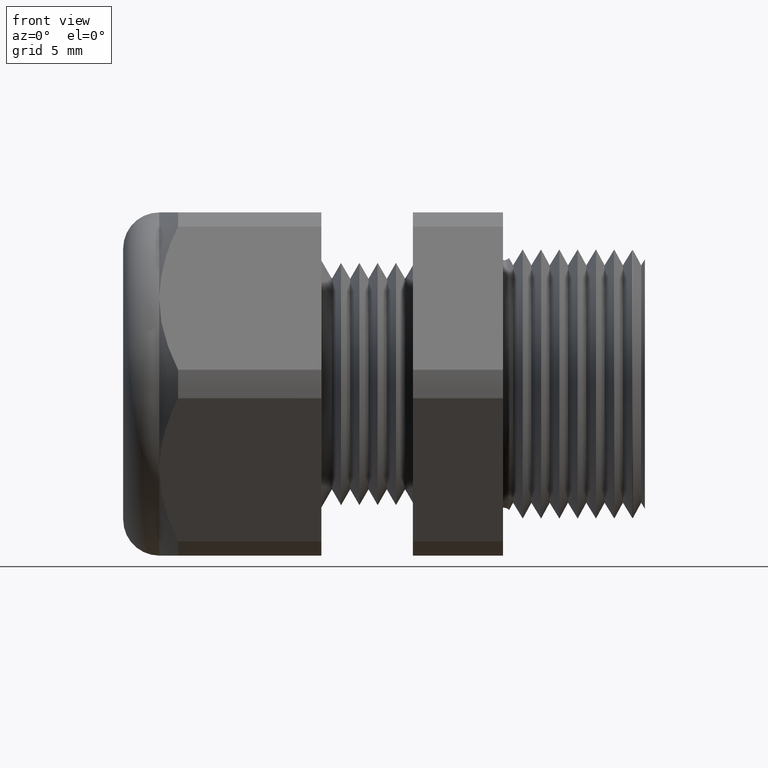
[diagram: clean part render]
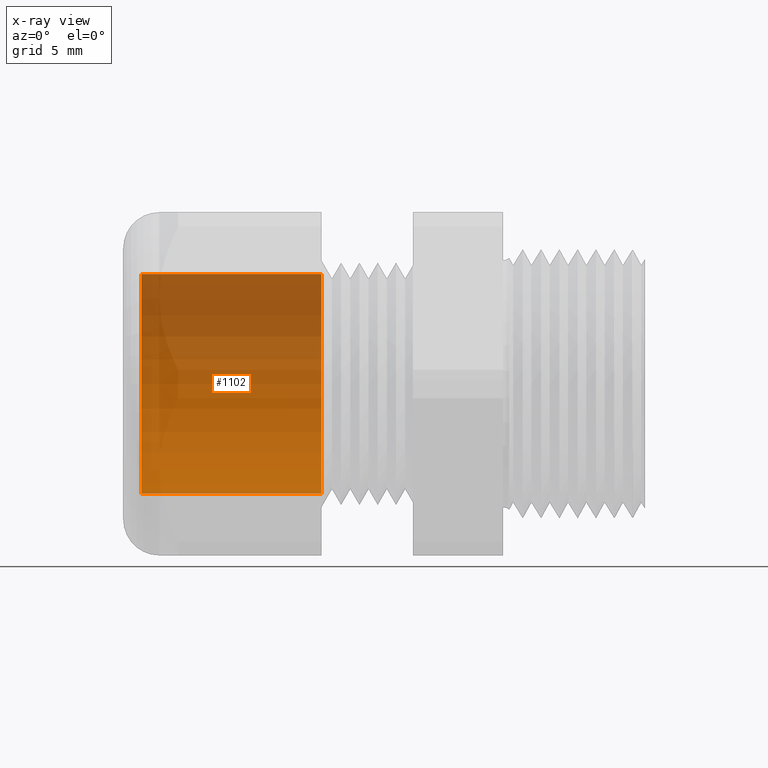
[diagram: x-ray — body ghosted, one internal face saturated and labeled with its STEP entity id]
A machine part, front view, then the same camera in x-ray: the body is ghosted and one INTERNAL B-rep face — a face not visible from any outside direction — is saturated and labeled: STEP entity #1102.
In plain terms, the highlighted cylindrical surface (partial cylindrical patch) has radius 6.096 mm, axis along (1, 0, 0).
Its self-contained STEP definition (entity closure, byte-faithful):
#1013 = VERTEX_POINT ( 'NONE', #2940 ) ;
#1089 = EDGE_CURVE ( 'NONE', #1096, #1106, #3068, .T. ) ;
#1090 = ORIENTED_EDGE ( 'NONE', *, *, #1091, .F. ) ;
#1091 = EDGE_CURVE ( 'NONE', #1013, #1106, #3064, .T. ) ;
#1096 = VERTEX_POINT ( 'NONE', #3048 ) ;
#1098 = EDGE_CURVE ( 'NONE', #1099, #1096, #3047, .T. ) ;
#1099 = VERTEX_POINT ( 'NONE', #3104 ) ;
#1102 = ADVANCED_FACE ( 'NONE', ( #3103 ), #3096, .T. ) ;
#1103 = EDGE_LOOP ( 'NONE', ( #1104, #1105, #1090, #1107 ) ) ;
#1104 = ORIENTED_EDGE ( 'NONE', *, *, #1098, .T. ) ;
#1105 = ORIENTED_EDGE ( 'NONE', *, *, #1089, .T. ) ;
#1106 = VERTEX_POINT ( 'NONE', #3092 ) ;
#1107 = ORIENTED_EDGE ( 'NONE', *, *, #1108, .F. ) ;
#1108 = EDGE_CURVE ( 'NONE', #1099, #1013, #3091, .T. ) ;
#2940 = CARTESIAN_POINT ( 'NONE',  ( -0.7069291338582671700, 0.0000000000000000000, -0.2399999999999999600 ) ) ;
#3044 = DIRECTION ( 'NONE',  ( 1.000000000000000000, 0.0000000000000000000, 0.0000000000000000000 ) ) ;
#3045 = CARTESIAN_POINT ( 'NONE',  ( -1.099999999999999900, 0.0000000000000000000, 0.0000000000000000000 ) ) ;
#3046 = AXIS2_PLACEMENT_3D ( 'NONE', #3045, #3044, #3105 ) ;
#3047 = CIRCLE ( 'NONE', #3046, 0.2399999999999999600 ) ;
#3048 = CARTESIAN_POINT ( 'NONE',  ( -1.099999999999999900, 2.939152317953647400E-017, 0.2399999999999999600 ) ) ;
#3060 = DIRECTION ( 'NONE',  ( 0.0000000000000000000, 0.0000000000000000000, -1.000000000000000000 ) ) ;
#3061 = DIRECTION ( 'NONE',  ( 1.000000000000000000, 0.0000000000000000000, 0.0000000000000000000 ) ) ;
#3062 = CARTESIAN_POINT ( 'NONE',  ( -0.7069291338582671700, 0.0000000000000000000, 0.0000000000000000000 ) ) ;
#3063 = AXIS2_PLACEMENT_3D ( 'NONE', #3062, #3061, #3060 ) ;
#3064 = CIRCLE ( 'NONE', #3063, 0.2399999999999999600 ) ;
#3065 = DIRECTION ( 'NONE',  ( 1.000000000000000000, 0.0000000000000000000, 0.0000000000000000000 ) ) ;
#3066 = VECTOR ( 'NONE', #3065, 39.37007874015748100 ) ;
#3067 = CARTESIAN_POINT ( 'NONE',  ( 0.09602717987635048200, 2.939152317953647400E-017, 0.2399999999999999600 ) ) ;
#3068 = LINE ( 'NONE', #3067, #3066 ) ;
#3088 = DIRECTION ( 'NONE',  ( 1.000000000000000000, 0.0000000000000000000, 0.0000000000000000000 ) ) ;
#3089 = VECTOR ( 'NONE', #3088, 39.37007874015748100 ) ;
#3090 = CARTESIAN_POINT ( 'NONE',  ( 0.09602717987635048200, 0.0000000000000000000, -0.2399999999999999600 ) ) ;
#3091 = LINE ( 'NONE', #3090, #3089 ) ;
#3092 = CARTESIAN_POINT ( 'NONE',  ( -0.7069291338582671700, 2.939152317953647400E-017, 0.2399999999999999600 ) ) ;
#3093 = DIRECTION ( 'NONE',  ( 0.0000000000000000000, 0.0000000000000000000, -1.000000000000000000 ) ) ;
#3094 = DIRECTION ( 'NONE',  ( 1.000000000000000000, 0.0000000000000000000, 0.0000000000000000000 ) ) ;
#3095 = AXIS2_PLACEMENT_3D ( 'NONE', #3097, #3094, #3093 ) ;
#3096 = CYLINDRICAL_SURFACE ( 'NONE', #3095, 0.2399999999999999600 ) ;
#3097 = CARTESIAN_POINT ( 'NONE',  ( 0.09602717987635048200, 0.0000000000000000000, 0.0000000000000000000 ) ) ;
#3103 = FACE_OUTER_BOUND ( 'NONE', #1103, .T. ) ;
#3104 = CARTESIAN_POINT ( 'NONE',  ( -1.099999999999999900, 0.0000000000000000000, -0.2399999999999999600 ) ) ;
#3105 = DIRECTION ( 'NONE',  ( 0.0000000000000000000, 0.0000000000000000000, -1.000000000000000000 ) ) ;